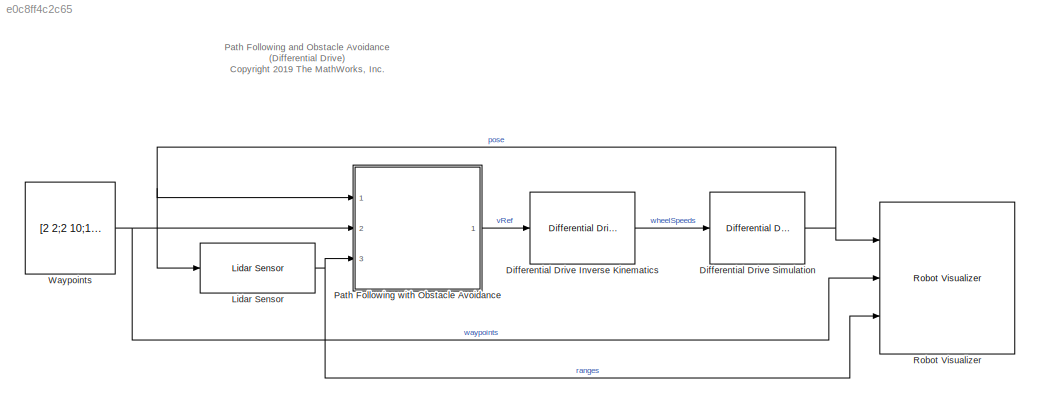
MODEL slx_e0c8ff4c2c65
KIND model
CONFIG AbsTol = auto
CONFIG EnableMultiTasking = on
CONFIG FixedStep = 0.01
CONFIG MaxStep = auto
CONFIG MinStep = auto
CONFIG PreLoadFcn = % Simulation parameters\nsampleTime = 0.1;\n\n% Vehicle parameters\nR = 0.1;\nL = 0.5;\n\n% Lidar parameters\nload exampleMap\nscanAngles = linspace(-pi/2,pi/2,51);\nscanMaxRange = 5;\nscanSensorOffset = [0,0];
CONFIG RelTol = 1e-3
CONFIG SampleTimeConstraint = Unconstrained
CONFIG Solver = VariableStepAuto
CONFIG SolverName = VariableStepAuto
CONFIG StartTime = 0.0
CONFIG StopTime = 42
BLOCK [Reference] Differential Drive Inverse Kinematics  REF=mobileRoboticsLib/Kinematic Models/Differential Drive/Differential Drive
Inverse Kinematics
  Ports = [1, 1]
  SourceBlock = mobileRoboticsLib/Kinematic Models/Differential Drive/Differential Drive\nInverse Kinematics
  SourceProductName = Mobile Robotics Simulation Toolbox
  SourceType = Differential Drive Inverse Kinematics
BLOCK [Reference] Differential Drive Simulation  REF=mobileRoboticsLib/Kinematic Models/Differential Drive/Differential Drive Simulation
  Ports = [1, 1]
  SourceBlock = mobileRoboticsLib/Kinematic Models/Differential Drive/Differential Drive Simulation
  SourceProductName = Mobile Robotics Simulation Toolbox
  SourceType = Differential Drive Simulation
BLOCK [Reference] Lidar Sensor  REF=mobileRoboticsLib/Environments/Lidar Sensor
  Ports = [1, 1]
  SourceBlock = mobileRoboticsLib/Environments/Lidar Sensor
  SourceProductName = Mobile Robotics Simulation Toolbox
  SourceType = LidarSensor
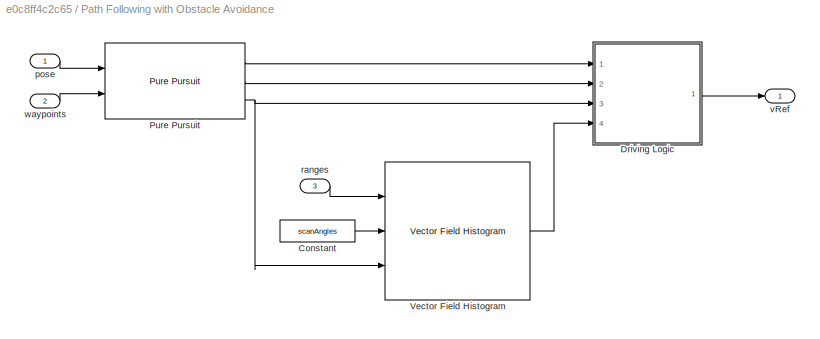
BLOCK [SubSystem] Path Following with Obstacle Avoidance
  Ports = [3, 1]
  RequestExecContextInheritance = off
BLOCK [Constant] Path Following with Obstacle Avoidance/Constant
  Value = scanAngles
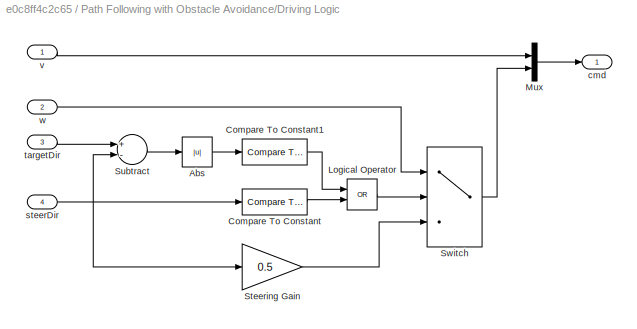
BLOCK [SubSystem] Path Following with Obstacle Avoidance/Driving Logic
  Ports = [4, 1]
  RequestExecContextInheritance = off
BLOCK [Abs] Path Following with Obstacle Avoidance/Driving Logic/Abs
  SaturateOnIntegerOverflow = off
BLOCK [Reference] Path Following with Obstacle Avoidance/Driving Logic/Compare To Constant  REF=simulink/Logic and Bit
Operations/Compare
To Constant
  Ports = [1, 1]
  SourceBlock = simulink/Logic and Bit\nOperations/Compare\nTo Constant
  SourceProductBaseCode = SL
  SourceProductName = Simulink
  SourceType = Compare To Constant
BLOCK [Reference] Path Following with Obstacle Avoidance/Driving Logic/Compare To Constant1  REF=simulink/Logic and Bit
Operations/Compare
To Constant
  Ports = [1, 1]
  SourceBlock = simulink/Logic and Bit\nOperations/Compare\nTo Constant
  SourceProductBaseCode = SL
  SourceProductName = Simulink
  SourceType = Compare To Constant
BLOCK [Logic] Path Following with Obstacle Avoidance/Driving Logic/Logical Operator
  AllPortsSameDT = off
  Operator = OR
  OutDataTypeStr = boolean
  Ports = [2, 1]
BLOCK [Mux] Path Following with Obstacle Avoidance/Driving Logic/Mux
  DisplayOption = bar
  Inputs = 2
  Ports = [2, 1]
BLOCK [Gain] Path Following with Obstacle Avoidance/Driving Logic/Steering Gain
  Gain = 0.5
  OutDataTypeStr = Inherit: Inherit via internal rule
  ParamDataTypeStr = Inherit: Inherit via internal rule
  SaturateOnIntegerOverflow = off
BLOCK [Sum] Path Following with Obstacle Avoidance/Driving Logic/Subtract
  InputSameDT = off
  Inputs = +-
  OutDataTypeStr = Inherit: Inherit via internal rule
  Ports = [2, 1]
  SaturateOnIntegerOverflow = off
BLOCK [Switch] Path Following with Obstacle Avoidance/Driving Logic/Switch
  Criteria = u2 ~= 0
  InputSameDT = off
  SaturateOnIntegerOverflow = off
BLOCK [Outport] Path Following with Obstacle Avoidance/Driving Logic/cmd
  IconDisplay = Port number
BLOCK [Inport] Path Following with Obstacle Avoidance/Driving Logic/steerDir
  IconDisplay = Port number
  Port = 4
BLOCK [Inport] Path Following with Obstacle Avoidance/Driving Logic/targetDir
  IconDisplay = Port number
  Port = 3
BLOCK [Inport] Path Following with Obstacle Avoidance/Driving Logic/v
  IconDisplay = Port number
BLOCK [Inport] Path Following with Obstacle Avoidance/Driving Logic/w
  IconDisplay = Port number
  Port = 2
BLOCK [Reference] Path Following with Obstacle Avoidance/Pure Pursuit  REF=robotalgslib/Pure Pursuit
  Ports = [2, 3]
  SourceBlock = robotalgslib/Pure Pursuit
  SourceProductBaseCode = RO
  SourceProductName = Robotics System Toolbox
  SourceType = robotics.slalgs.internal.PurePursuit
BLOCK [Reference] Path Following with Obstacle Avoidance/Vector Field Histogram  REF=robotalgslib/Vector Field Histogram
  Ports = [3, 1]
  SourceBlock = robotalgslib/Vector Field Histogram
  SourceProductBaseCode = RO
  SourceProductName = Robotics System Toolbox
  SourceType = robotics.slalgs.internal.VectorFieldHistogram
BLOCK [Inport] Path Following with Obstacle Avoidance/pose
  IconDisplay = Port number
BLOCK [Inport] Path Following with Obstacle Avoidance/ranges
  IconDisplay = Port number
  Port = 3
BLOCK [Outport] Path Following with Obstacle Avoidance/vRef
  IconDisplay = Port number
BLOCK [Inport] Path Following with Obstacle Avoidance/waypoints
  IconDisplay = Port number
  Port = 2
BLOCK [Reference] Robot Visualizer  REF=mobileRoboticsLib/Environments/Robot Visualizer
  Ports = [3]
  Priority = 99
  SourceBlock = mobileRoboticsLib/Environments/Robot Visualizer
  SourceProductName = Mobile Robotics Simulation Toolbox
  SourceType = Visualizer2D
BLOCK [Constant] Waypoints
  Value = [2 2;2 10;11 8;8 2]
ANNOTATION (root): Path Following and Obstacle Avoidance (Differential Drive) <copyright redacted>
LINE Differential Drive Inverse Kinematics:1 -> Differential Drive Simulation:1
NET Differential Drive Simulation:1 -> Lidar Sensor:1, Path Following with Obstacle Avoidance:1, Robot Visualizer:1
NET Lidar Sensor:1 -> Path Following with Obstacle Avoidance:3, Robot Visualizer:3
LINE Path Following with Obstacle Avoidance/Constant:1 -> Path Following with Obstacle Avoidance/Vector Field Histogram:2
LINE Path Following with Obstacle Avoidance/Driving Logic/Abs:1 -> Path Following with Obstacle Avoidance/Driving Logic/Compare To Constant1:1
LINE Path Following with Obstacle Avoidance/Driving Logic/Compare To Constant1:1 -> Path Following with Obstacle Avoidance/Driving Logic/Logical Operator:1
LINE Path Following with Obstacle Avoidance/Driving Logic/Compare To Constant:1 -> Path Following with Obstacle Avoidance/Driving Logic/Logical Operator:2
LINE Path Following with Obstacle Avoidance/Driving Logic/Logical Operator:1 -> Path Following with Obstacle Avoidance/Driving Logic/Switch:2
LINE Path Following with Obstacle Avoidance/Driving Logic/Mux:1 -> Path Following with Obstacle Avoidance/Driving Logic/cmd:1
LINE Path Following with Obstacle Avoidance/Driving Logic/Steering Gain:1 -> Path Following with Obstacle Avoidance/Driving Logic/Switch:3
LINE Path Following with Obstacle Avoidance/Driving Logic/Subtract:1 -> Path Following with Obstacle Avoidance/Driving Logic/Abs:1
LINE Path Following with Obstacle Avoidance/Driving Logic/Switch:1 -> Path Following with Obstacle Avoidance/Driving Logic/Mux:2
NET Path Following with Obstacle Avoidance/Driving Logic/steerDir:1 -> Path Following with Obstacle Avoidance/Driving Logic/Compare To Constant:1, Path Following with Obstacle Avoidance/Driving Logic/Steering Gain:1, Path Following with Obstacle Avoidance/Driving Logic/Subtract:2
LINE Path Following with Obstacle Avoidance/Driving Logic/targetDir:1 -> Path Following with Obstacle Avoidance/Driving Logic/Subtract:1
LINE Path Following with Obstacle Avoidance/Driving Logic/v:1 -> Path Following with Obstacle Avoidance/Driving Logic/Mux:1
LINE Path Following with Obstacle Avoidance/Driving Logic/w:1 -> Path Following with Obstacle Avoidance/Driving Logic/Switch:1
LINE Path Following with Obstacle Avoidance/Driving Logic:1 -> Path Following with Obstacle Avoidance/vRef:1
LINE Path Following with Obstacle Avoidance/Pure Pursuit:1 -> Path Following with Obstacle Avoidance/Driving Logic:1
LINE Path Following with Obstacle Avoidance/Pure Pursuit:2 -> Path Following with Obstacle Avoidance/Driving Logic:2
NET Path Following with Obstacle Avoidance/Pure Pursuit:3 -> Path Following with Obstacle Avoidance/Driving Logic:3, Path Following with Obstacle Avoidance/Vector Field Histogram:3
LINE Path Following with Obstacle Avoidance/Vector Field Histogram:1 -> Path Following with Obstacle Avoidance/Driving Logic:4
LINE Path Following with Obstacle Avoidance/pose:1 -> Path Following with Obstacle Avoidance/Pure Pursuit:1
LINE Path Following with Obstacle Avoidance/ranges:1 -> Path Following with Obstacle Avoidance/Vector Field Histogram:1
LINE Path Following with Obstacle Avoidance/waypoints:1 -> Path Following with Obstacle Avoidance/Pure Pursuit:2
LINE Path Following with Obstacle Avoidance:1 -> Differential Drive Inverse Kinematics:1
NET Waypoints:1 -> Path Following with Obstacle Avoidance:2, Robot Visualizer:2
note: NET lines group one-source signal fan-out (src -> all destinations, sorted); 1:1 wires keep LINE
